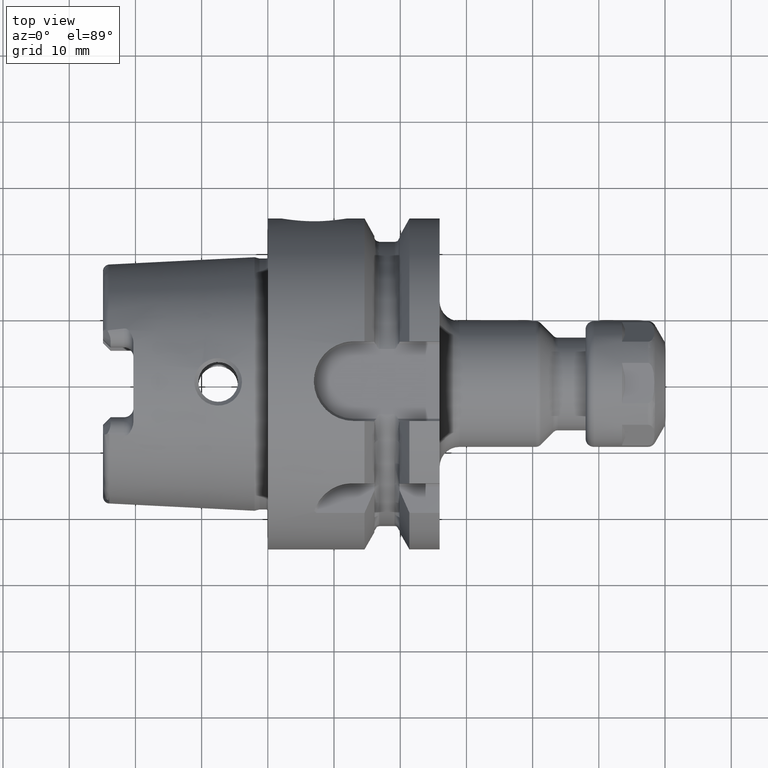
[diagram: clean part render]
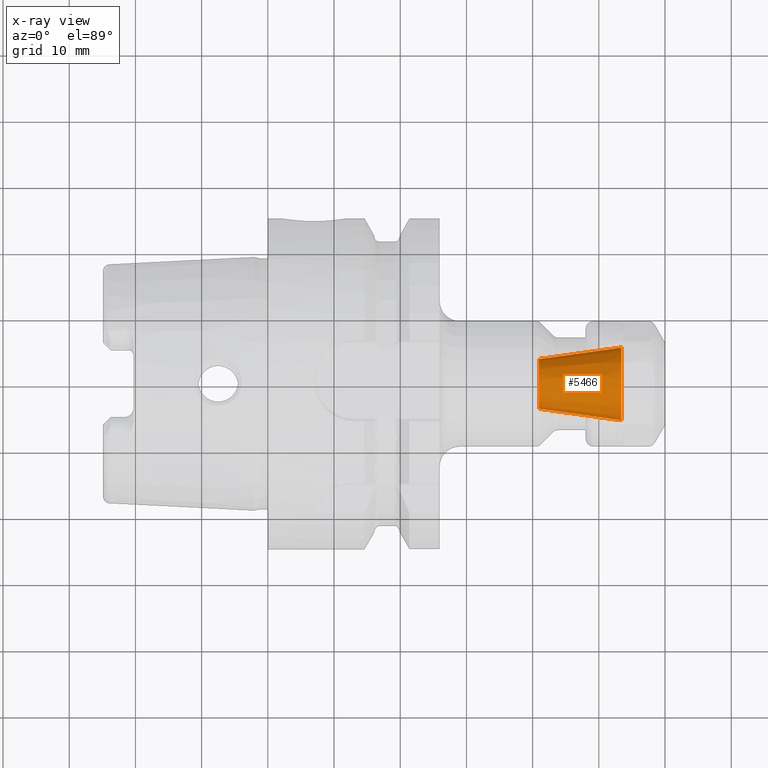
[diagram: x-ray — body ghosted, one internal face saturated and labeled with its STEP entity id]
A machine part, top view, then the same camera in x-ray: the body is ghosted and one INTERNAL B-rep face — a face not visible from any outside direction — is saturated and labeled: STEP entity #5466.
In plain terms, the highlighted conical surface has half-angle 8 deg.
Its self-contained STEP definition (entity closure, byte-faithful):
#2006=CARTESIAN_POINT('',(5.34E1,0.E0,0.E0));
#2007=DIRECTION('',(1.E0,0.E0,0.E0));
#2008=DIRECTION('',(0.E0,1.E0,0.E0));
#2009=AXIS2_PLACEMENT_3D('',#2006,#2007,#2008);
#2016=DIRECTION('',(-9.902680687416E-1,1.391731009601E-1,0.E0));
#2017=VECTOR('',#2016,1.257426893507E1);
#2018=CARTESIAN_POINT('',(5.34E1,-5.5E0,0.E0));
#2019=LINE('',#2018,#2017);
#2020=DIRECTION('',(-9.902680687416E-1,-1.391731009601E-1,0.E0));
#2021=VECTOR('',#2020,1.257426893507E1);
#2022=CARTESIAN_POINT('',(5.34E1,5.5E0,0.E0));
#2023=LINE('',#2022,#2021);
#2037=CARTESIAN_POINT('',(4.094810298583E1,0.E0,0.E0));
#2038=DIRECTION('',(1.E0,0.E0,0.E0));
#2039=DIRECTION('',(0.E0,1.E0,0.E0));
#2040=AXIS2_PLACEMENT_3D('',#2037,#2038,#2039);
#3294=CARTESIAN_POINT('',(4.094810298583E1,3.75E0,0.E0));
#3296=VERTEX_POINT('',#3294);
#3298=CARTESIAN_POINT('',(4.094810298583E1,-3.75E0,0.E0));
#3300=VERTEX_POINT('',#3298);
#3302=CARTESIAN_POINT('',(5.34E1,5.5E0,0.E0));
#3303=CARTESIAN_POINT('',(5.34E1,-5.5E0,0.E0));
#3304=VERTEX_POINT('',#3302);
#3305=VERTEX_POINT('',#3303);
#5452=CARTESIAN_POINT('',(4.717405149291E1,0.E0,0.E0));
#5453=DIRECTION('',(1.E0,0.E0,0.E0));
#5454=DIRECTION('',(0.E0,-1.E0,0.E0));
#5455=AXIS2_PLACEMENT_3D('',#5452,#5453,#5454);
#5456=CONICAL_SURFACE('',#5455,4.625E0,8.E0);
#5457=ORIENTED_EDGE('',*,*,#5445,.F.);
#5459=ORIENTED_EDGE('',*,*,#5458,.T.);
#5461=ORIENTED_EDGE('',*,*,#5460,.T.);
#5463=ORIENTED_EDGE('',*,*,#5462,.F.);
#5464=EDGE_LOOP('',(#5457,#5459,#5461,#5463));
#5465=FACE_OUTER_BOUND('',#5464,.F.);
#5466=ADVANCED_FACE('',(#5465),#5456,.F.);
#2010=CIRCLE('',#2009,5.5E0);
#2041=CIRCLE('',#2040,3.75E0);
#5445=EDGE_CURVE('',#3304,#3305,#2010,.T.);
#5458=EDGE_CURVE('',#3304,#3296,#2023,.T.);
#5460=EDGE_CURVE('',#3296,#3300,#2041,.T.);
#5462=EDGE_CURVE('',#3305,#3300,#2019,.T.);